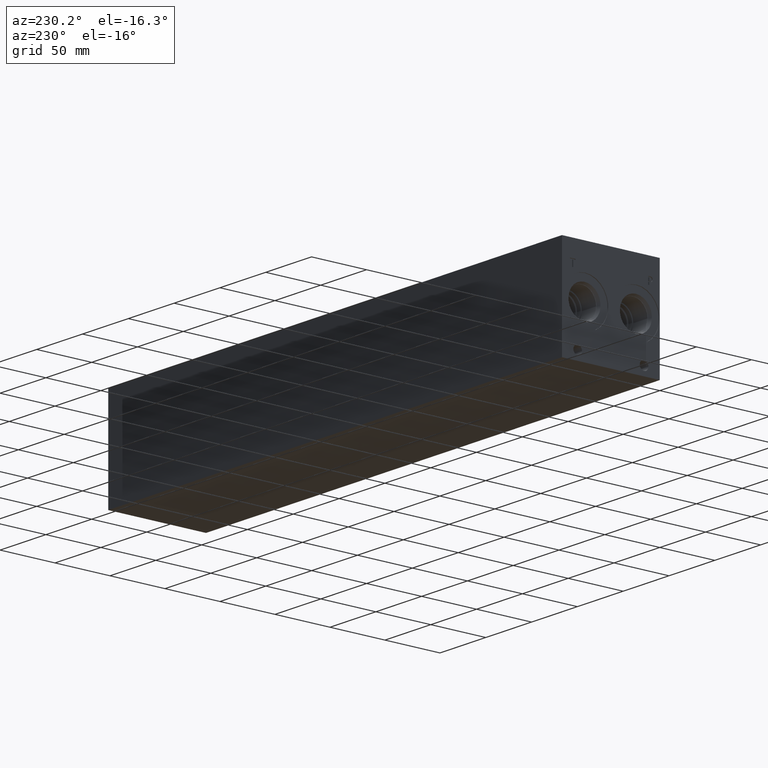
[diagram: clean part render]
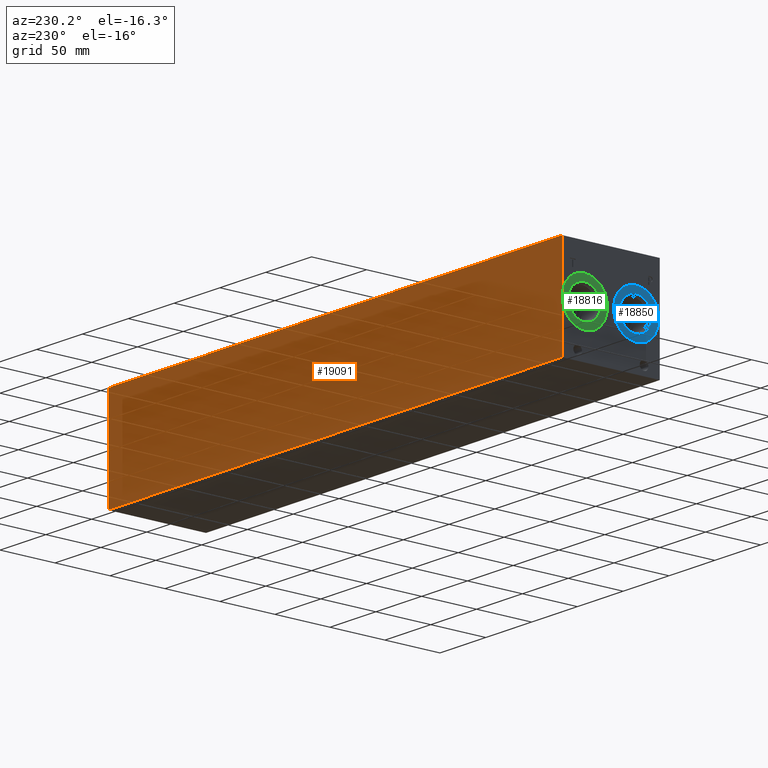
[diagram: same view with three faces highlighted in distinct colors, each labeled with its STEP entity id]
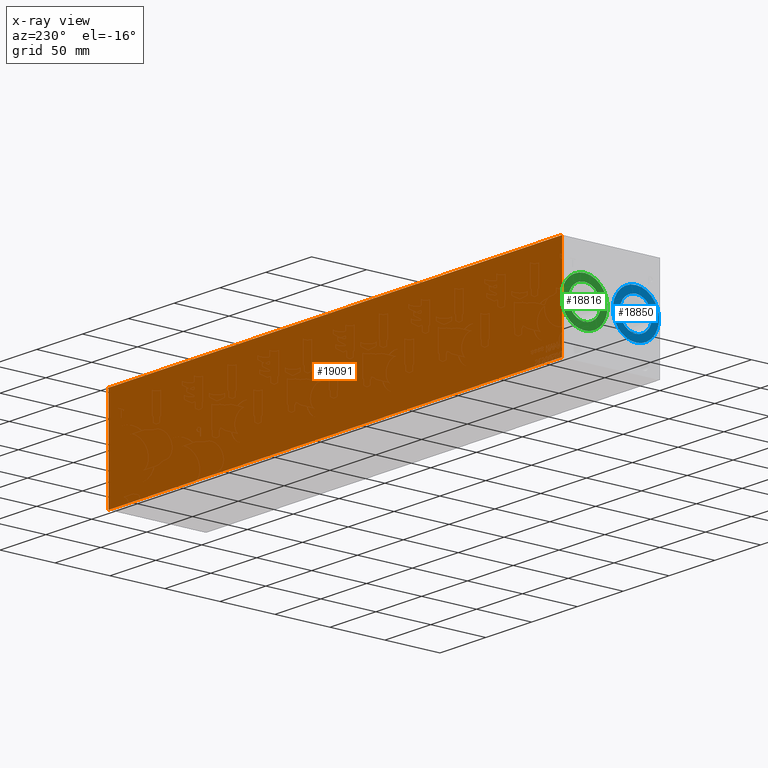
[diagram: x-ray of the same camera — body ghosted, the three highlighted faces saturated]
A machine part, auxiliary view with three faces highlighted in distinct colors.
The next image is the same camera in x-ray (body ghosted, the three faces saturated) — at least one of them is partly hidden behind the body in this view.
Their STEP definitions:

[orange] entity #19091 — the highlighted planar face has unit normal (0, 1, 0).
#2795=FACE_OUTER_BOUND('',#3942,.T.);
#3942=EDGE_LOOP('',(#16872,#16873,#16874,#16875));
#5123=LINE('',#30565,#6705);
#5159=LINE('',#30789,#6741);
#5575=LINE('',#33349,#7157);
#5576=LINE('',#33350,#7158);
#6705=VECTOR('',#22391,10.);
#6741=VECTOR('',#22463,10.);
#7157=VECTOR('',#24851,10.);
#7158=VECTOR('',#24852,10.);
#8215=VERTEX_POINT('',#30562);
#8216=VERTEX_POINT('',#30564);
#8257=VERTEX_POINT('',#30785);
#8258=VERTEX_POINT('',#30787);
#10569=EDGE_CURVE('',#8215,#8216,#5123,.T.);
#10629=EDGE_CURVE('',#8257,#8258,#5159,.T.);
#11674=EDGE_CURVE('',#8215,#8257,#5575,.T.);
#11675=EDGE_CURVE('',#8216,#8258,#5576,.T.);
#16872=ORIENTED_EDGE('',*,*,#11674,.T.);
#16873=ORIENTED_EDGE('',*,*,#10629,.T.);
#16874=ORIENTED_EDGE('',*,*,#11675,.F.);
#16875=ORIENTED_EDGE('',*,*,#10569,.F.);
#17474=PLANE('',#20494);
#19091=ADVANCED_FACE('',(#2795),#17474,.T.);
#20494=AXIS2_PLACEMENT_3D('',#33348,#24849,#24850);
#22391=DIRECTION('',(0.,0.,1.));
#22463=DIRECTION('',(0.,0.,1.));
#24849=DIRECTION('center_axis',(0.,1.,0.));
#24850=DIRECTION('ref_axis',(-1.,0.,0.));
#24851=DIRECTION('',(-1.,0.,0.));
#24852=DIRECTION('',(-1.,0.,0.));
#30562=CARTESIAN_POINT('',(495.3,88.9,0.));
#30564=CARTESIAN_POINT('',(495.3,88.9,88.9));
#30565=CARTESIAN_POINT('',(495.3,88.9,0.));
#30785=CARTESIAN_POINT('',(0.,88.9,0.));
#30787=CARTESIAN_POINT('',(0.,88.9,88.9));
#30789=CARTESIAN_POINT('',(0.,88.9,0.));
#33348=CARTESIAN_POINT('Origin',(495.3,88.9,0.));
#33349=CARTESIAN_POINT('',(495.3,88.9,0.));
#33350=CARTESIAN_POINT('',(495.3,88.9,88.9));

[blue] entity #18850 — the highlighted planar face has unit normal (1, 0, 0).
#743=CIRCLE('',#19849,21.0185);
#744=CIRCLE('',#19850,21.0185);
#745=CIRCLE('',#19852,14.5923);
#746=CIRCLE('',#19853,14.5923);
#1712=FACE_BOUND('',#3661,.T.);
#2554=FACE_OUTER_BOUND('',#3660,.T.);
#3660=EDGE_LOOP('',(#15739,#15740));
#3661=EDGE_LOOP('',(#15741,#15742));
#8553=VERTEX_POINT('',#32039);
#8554=VERTEX_POINT('',#32041);
#8555=VERTEX_POINT('',#32045);
#8556=VERTEX_POINT('',#32046);
#11071=EDGE_CURVE('',#8553,#8554,#743,.T.);
#11072=EDGE_CURVE('',#8554,#8553,#744,.T.);
#11073=EDGE_CURVE('',#8555,#8556,#745,.T.);
#11074=EDGE_CURVE('',#8556,#8555,#746,.T.);
#15739=ORIENTED_EDGE('',*,*,#11072,.F.);
#15740=ORIENTED_EDGE('',*,*,#11071,.F.);
#15741=ORIENTED_EDGE('',*,*,#11073,.T.);
#15742=ORIENTED_EDGE('',*,*,#11074,.T.);
#17432=PLANE('',#19851);
#18850=ADVANCED_FACE('',(#2554,#1712),#17432,.F.);
#19849=AXIS2_PLACEMENT_3D('',#32042,#23360,#23361);
#19850=AXIS2_PLACEMENT_3D('',#32043,#23362,#23363);
#19851=AXIS2_PLACEMENT_3D('',#32044,#23364,#23365);
#19852=AXIS2_PLACEMENT_3D('',#32047,#23366,#23367);
#19853=AXIS2_PLACEMENT_3D('',#32048,#23368,#23369);
#23360=DIRECTION('center_axis',(1.,0.,0.));
#23361=DIRECTION('ref_axis',(0.,0.,-1.));
#23362=DIRECTION('center_axis',(1.,0.,0.));
#23363=DIRECTION('ref_axis',(0.,0.,-1.));
#23364=DIRECTION('center_axis',(1.,0.,0.));
#23365=DIRECTION('ref_axis',(0.,0.,-1.));
#23366=DIRECTION('center_axis',(1.,0.,0.));
#23367=DIRECTION('ref_axis',(0.,0.,-1.));
#23368=DIRECTION('center_axis',(1.,0.,0.));
#23369=DIRECTION('ref_axis',(0.,0.,-1.));
#32039=CARTESIAN_POINT('',(0.7874,21.082,23.4315));
#32041=CARTESIAN_POINT('',(0.7874,21.082,65.4685));
#32042=CARTESIAN_POINT('Origin',(0.7874,21.082,44.45));
#32043=CARTESIAN_POINT('Origin',(0.7874,21.082,44.45));
#32044=CARTESIAN_POINT('Origin',(0.7874,21.082,59.0423));
#32045=CARTESIAN_POINT('',(0.7874,21.082,59.0423));
#32046=CARTESIAN_POINT('',(0.787399999999999,21.082,29.8577));
#32047=CARTESIAN_POINT('Origin',(0.7874,21.082,44.45));
#32048=CARTESIAN_POINT('Origin',(0.7874,21.082,44.45));

[green] entity #18816 — the highlighted planar face has unit normal (1, 0, 0).
#689=CIRCLE('',#19761,21.0185);
#690=CIRCLE('',#19762,21.0185);
#691=CIRCLE('',#19764,14.5923);
#692=CIRCLE('',#19765,14.5923);
#1706=FACE_BOUND('',#3621,.T.);
#2520=FACE_OUTER_BOUND('',#3620,.T.);
#3620=EDGE_LOOP('',(#15571,#15572));
#3621=EDGE_LOOP('',(#15573,#15574));
#8495=VERTEX_POINT('',#31865);
#8496=VERTEX_POINT('',#31867);
#8497=VERTEX_POINT('',#31871);
#8498=VERTEX_POINT('',#31872);
#10989=EDGE_CURVE('',#8495,#8496,#689,.T.);
#10990=EDGE_CURVE('',#8496,#8495,#690,.T.);
#10991=EDGE_CURVE('',#8497,#8498,#691,.T.);
#10992=EDGE_CURVE('',#8498,#8497,#692,.T.);
#15571=ORIENTED_EDGE('',*,*,#10990,.F.);
#15572=ORIENTED_EDGE('',*,*,#10989,.F.);
#15573=ORIENTED_EDGE('',*,*,#10991,.T.);
#15574=ORIENTED_EDGE('',*,*,#10992,.T.);
#17426=PLANE('',#19763);
#18816=ADVANCED_FACE('',(#2520,#1706),#17426,.F.);
#19761=AXIS2_PLACEMENT_3D('',#31868,#23156,#23157);
#19762=AXIS2_PLACEMENT_3D('',#31869,#23158,#23159);
#19763=AXIS2_PLACEMENT_3D('',#31870,#23160,#23161);
#19764=AXIS2_PLACEMENT_3D('',#31873,#23162,#23163);
#19765=AXIS2_PLACEMENT_3D('',#31874,#23164,#23165);
#23156=DIRECTION('center_axis',(1.,0.,0.));
#23157=DIRECTION('ref_axis',(0.,0.,-1.));
#23158=DIRECTION('center_axis',(1.,0.,0.));
#23159=DIRECTION('ref_axis',(0.,0.,-1.));
#23160=DIRECTION('center_axis',(1.,0.,0.));
#23161=DIRECTION('ref_axis',(0.,0.,-1.));
#23162=DIRECTION('center_axis',(1.,0.,0.));
#23163=DIRECTION('ref_axis',(0.,0.,-1.));
#23164=DIRECTION('center_axis',(1.,0.,0.));
#23165=DIRECTION('ref_axis',(0.,0.,-1.));
#31865=CARTESIAN_POINT('',(0.7874,67.818,23.4315));
#31867=CARTESIAN_POINT('',(0.7874,67.818,65.4685));
#31868=CARTESIAN_POINT('Origin',(0.7874,67.818,44.45));
#31869=CARTESIAN_POINT('Origin',(0.7874,67.818,44.45));
#31870=CARTESIAN_POINT('Origin',(0.7874,67.818,59.0423));
#31871=CARTESIAN_POINT('',(0.7874,67.818,59.0423));
#31872=CARTESIAN_POINT('',(0.787399999999998,67.818,29.8577));
#31873=CARTESIAN_POINT('Origin',(0.7874,67.818,44.45));
#31874=CARTESIAN_POINT('Origin',(0.7874,67.818,44.45));